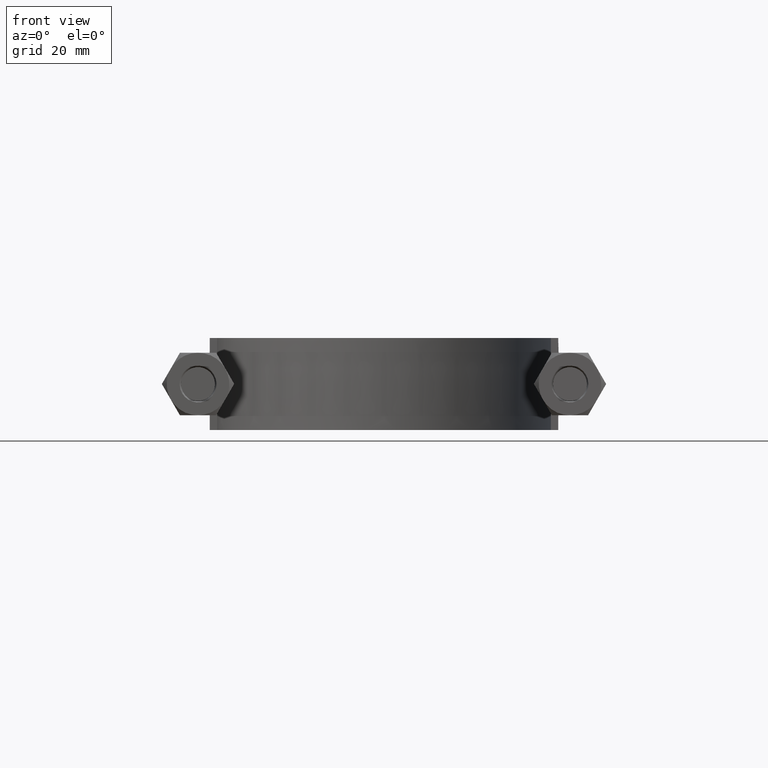
[diagram: clean part render]
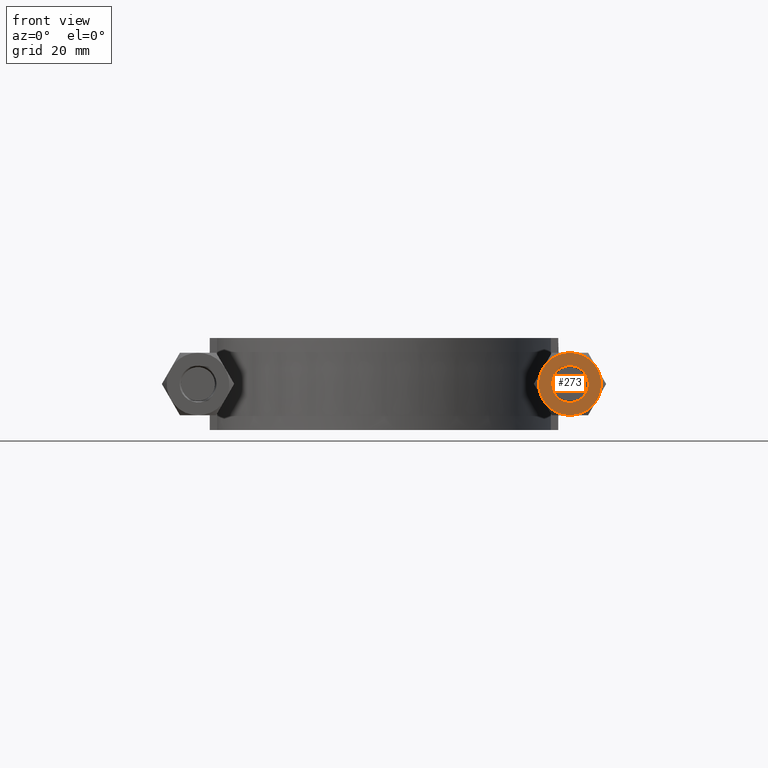
[diagram: same view with one face highlighted and labeled with its STEP entity id]
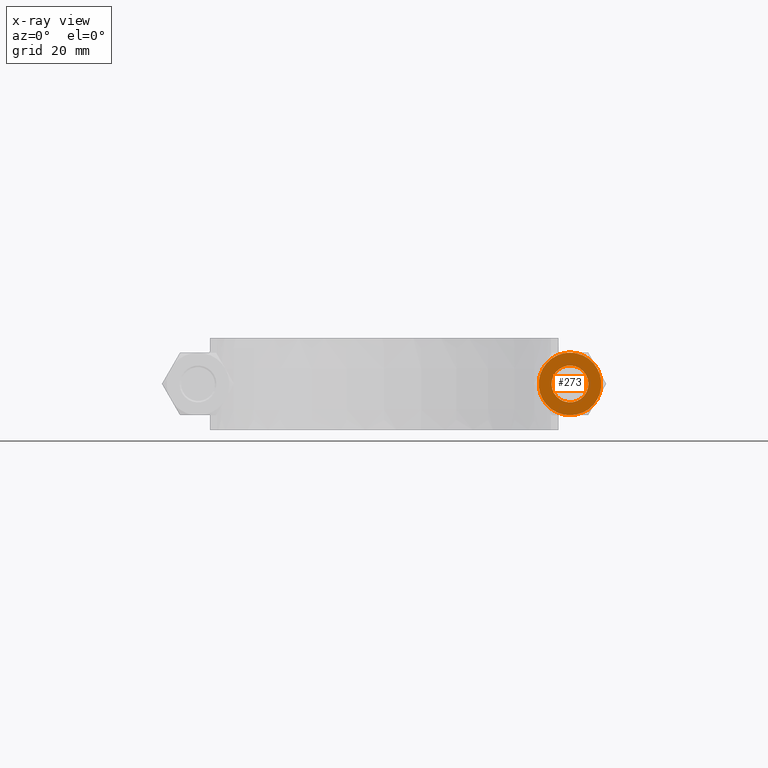
[diagram: x-ray of the same camera — body ghosted, the highlighted face saturated]
A machine part, front view. The second image highlights one B-rep face of the part: STEP entity #273.
The next image is the same camera in x-ray: the body ghosted, the highlighted face saturated — about 0% of this face is hidden behind the body in this view.
In plain terms, the highlighted planar face has unit normal (0, 1, 0).
Its self-contained STEP definition (entity closure, byte-faithful):
#273 = ADVANCED_FACE( '', ( #419, #420 ), #421, .F. );
#419 = FACE_OUTER_BOUND( '', #1405, .T. );
#420 = FACE_BOUND( '', #1406, .T. );
#421 = PLANE( '', #1407 );
#1405 = EDGE_LOOP( '', ( #1825, #1826, #1827, #1828, #1829, #1830 ) );
#1406 = EDGE_LOOP( '', ( #1831 ) );
#1407 = AXIS2_PLACEMENT_3D( '', #1832, #1833, #1834 );
#1825 = ORIENTED_EDGE( '', *, *, #2095, .F. );
#1826 = ORIENTED_EDGE( '', *, *, #2096, .F. );
#1827 = ORIENTED_EDGE( '', *, *, #2097, .F. );
#1828 = ORIENTED_EDGE( '', *, *, #2098, .F. );
#1829 = ORIENTED_EDGE( '', *, *, #2093, .F. );
#1830 = ORIENTED_EDGE( '', *, *, #2099, .F. );
#1831 = ORIENTED_EDGE( '', *, *, #2100, .T. );
#1832 = CARTESIAN_POINT( '', ( 50.5000000000000, 20.0000000000000, 1.48980220521233E-015 ) );
#1833 = DIRECTION( '', ( 2.44921270764475E-016, 1.00000000000000, 6.12303176911189E-017 ) );
#1834 = DIRECTION( '', ( -0.866025403784439, 2.42723201254762E-016, -0.500000000000000 ) );
#2093 = EDGE_CURVE( '', #2310, #2312, #2313, .T. );
#2095 = EDGE_CURVE( '', #2315, #2316, #2317, .T. );
#2096 = EDGE_CURVE( '', #2318, #2315, #2319, .T. );
#2097 = EDGE_CURVE( '', #2320, #2318, #2321, .T. );
#2098 = EDGE_CURVE( '', #2312, #2320, #2322, .T. );
#2099 = EDGE_CURVE( '', #2316, #2310, #2323, .T. );
#2100 = EDGE_CURVE( '', #2324, #2324, #2325, .T. );
#2310 = VERTEX_POINT( '', #2900 );
#2312 = VERTEX_POINT( '', #2907 );
#2313 = CIRCLE( '', #2908, 8.50000000000000 );
#2315 = VERTEX_POINT( '', #2917 );
#2316 = VERTEX_POINT( '', #2918 );
#2317 = CIRCLE( '', #2919, 8.50000000000000 );
#2318 = VERTEX_POINT( '', #2920 );
#2319 = CIRCLE( '', #2921, 8.50000000000000 );
#2320 = VERTEX_POINT( '', #2922 );
#2321 = CIRCLE( '', #2923, 8.50000000000000 );
#2322 = CIRCLE( '', #2924, 8.50000000000000 );
#2323 = CIRCLE( '', #2925, 8.50000000000000 );
#2324 = VERTEX_POINT( '', #2926 );
#2325 = CIRCLE( '', #2927, 5.00000000000000 );
#2900 = CARTESIAN_POINT( '', ( 57.8612159321678, 20.0000000000000, 4.25000000000000 ) );
#2907 = CARTESIAN_POINT( '', ( 57.8612159321678, 20.0000000000000, -4.25000000000000 ) );
#2908 = AXIS2_PLACEMENT_3D( '', #3222, #3223, #3224 );
#2917 = CARTESIAN_POINT( '', ( 43.1387840678323, 20.0000000000000, 4.25000000000000 ) );
#2918 = CARTESIAN_POINT( '', ( 50.5000000000000, 20.0000000000000, 8.50000000000000 ) );
#2919 = AXIS2_PLACEMENT_3D( '', #3225, #3226, #3227 );
#2920 = CARTESIAN_POINT( '', ( 43.1387840678323, 20.0000000000000, -4.25000000000000 ) );
#2921 = AXIS2_PLACEMENT_3D( '', #3228, #3229, #3230 );
#2922 = CARTESIAN_POINT( '', ( 50.5000000000000, 20.0000000000000, -8.50000000000000 ) );
#2923 = AXIS2_PLACEMENT_3D( '', #3231, #3232, #3233 );
#2924 = AXIS2_PLACEMENT_3D( '', #3234, #3235, #3236 );
#2925 = AXIS2_PLACEMENT_3D( '', #3237, #3238, #3239 );
#2926 = CARTESIAN_POINT( '', ( 46.1698729810778, 20.0000000000000, -2.50000000000000 ) );
#2927 = AXIS2_PLACEMENT_3D( '', #3240, #3241, #3242 );
#3222 = CARTESIAN_POINT( '', ( 50.5000000000000, 20.0000000000000, 1.48980220521233E-015 ) );
#3223 = DIRECTION( '', ( 2.44921270764476E-016, 1.00000000000000, 6.12303176911189E-017 ) );
#3224 = DIRECTION( '', ( -0.866025403784439, 2.42723201254762E-016, -0.500000000000000 ) );
#3225 = CARTESIAN_POINT( '', ( 50.5000000000000, 20.0000000000000, 1.48980220521233E-015 ) );
#3226 = DIRECTION( '', ( 2.44921270764476E-016, 1.00000000000000, 6.12303176911189E-017 ) );
#3227 = DIRECTION( '', ( -0.866025403784439, 2.42723201254762E-016, -0.500000000000000 ) );
#3228 = CARTESIAN_POINT( '', ( 50.5000000000000, 20.0000000000000, 1.48980220521233E-015 ) );
#3229 = DIRECTION( '', ( 2.44921270764476E-016, 1.00000000000000, 6.12303176911189E-017 ) );
#3230 = DIRECTION( '', ( -0.866025403784439, 2.42723201254762E-016, -0.500000000000000 ) );
#3231 = CARTESIAN_POINT( '', ( 50.5000000000000, 20.0000000000000, 1.48980220521233E-015 ) );
#3232 = DIRECTION( '', ( 2.44921270764476E-016, 1.00000000000000, 6.12303176911189E-017 ) );
#3233 = DIRECTION( '', ( -0.866025403784439, 2.42723201254762E-016, -0.500000000000000 ) );
#3234 = CARTESIAN_POINT( '', ( 50.5000000000000, 20.0000000000000, 1.48980220521233E-015 ) );
#3235 = DIRECTION( '', ( 2.44921270764476E-016, 1.00000000000000, 6.12303176911189E-017 ) );
#3236 = DIRECTION( '', ( -0.866025403784439, 2.42723201254762E-016, -0.500000000000000 ) );
#3237 = CARTESIAN_POINT( '', ( 50.5000000000000, 20.0000000000000, 1.48980220521233E-015 ) );
#3238 = DIRECTION( '', ( 2.44921270764476E-016, 1.00000000000000, 6.12303176911189E-017 ) );
#3239 = DIRECTION( '', ( -0.866025403784439, 2.42723201254762E-016, -0.500000000000000 ) );
#3240 = CARTESIAN_POINT( '', ( 50.5000000000000, 20.0000000000000, 1.48980220521233E-015 ) );
#3241 = DIRECTION( '', ( 2.44921270764475E-016, 1.00000000000000, 6.12303176911189E-017 ) );
#3242 = DIRECTION( '', ( -0.866025403784439, 2.42723201254762E-016, -0.500000000000000 ) );